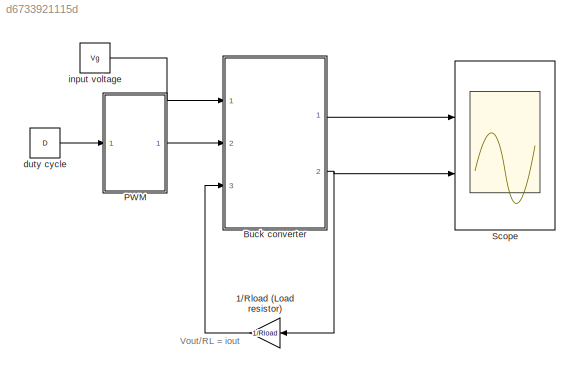
MODEL slx_d6733921115d
KIND model
CONFIG AbsTol = auto
CONFIG FixedStep = auto
CONFIG MaxStep = 0.1e-6
CONFIG MinStep = auto
CONFIG RelTol = 1e-3
CONFIG SampleTimeConstraint = Unconstrained
CONFIG Solver = ode45
CONFIG SolverMode = Auto
CONFIG SolverName = ode45
CONFIG StartTime = 0.0
CONFIG StopTime = 1e-3
BLOCK [Gain] 1//Rload (Load resistor)
  Gain = 1/Rload
  OutDataTypeStr = Inherit: Inherit via internal rule
  ParamDataTypeStr = Inherit: Inherit via internal rule
  SaturateOnIntegerOverflow = off
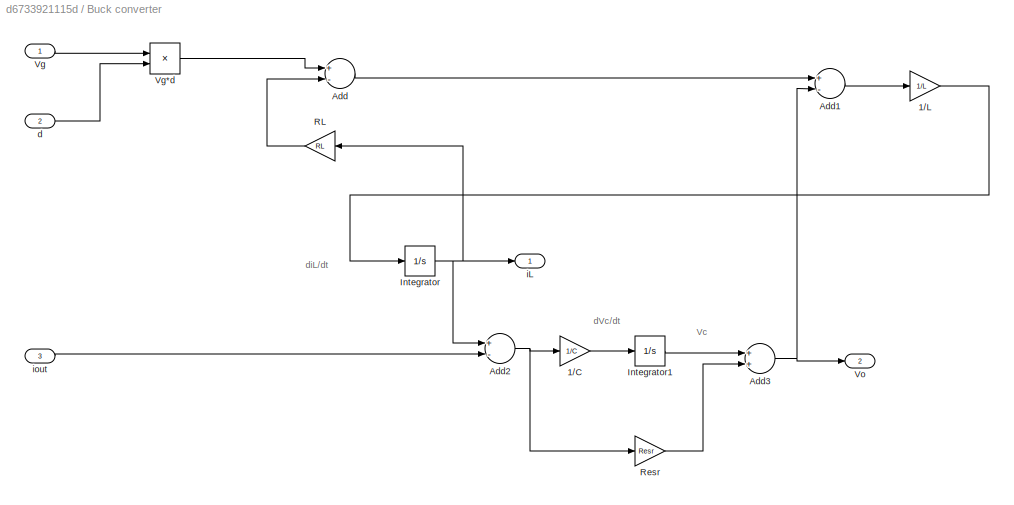
BLOCK [SubSystem] Buck converter
  Ports = [3, 2]
  RequestExecContextInheritance = off
  Variant = off
BLOCK [Gain] Buck converter/1//C
  Gain = 1/C
  OutDataTypeStr = Inherit: Inherit via internal rule
  ParamDataTypeStr = Inherit: Inherit via internal rule
  SaturateOnIntegerOverflow = off
BLOCK [Gain] Buck converter/1//L
  Gain = 1/L
  OutDataTypeStr = Inherit: Inherit via internal rule
  ParamDataTypeStr = Inherit: Inherit via internal rule
  SaturateOnIntegerOverflow = off
BLOCK [Sum] Buck converter/Add
  InputSameDT = off
  Inputs = +-
  OutDataTypeStr = Inherit: Inherit via internal rule
  Ports = [2, 1]
  SaturateOnIntegerOverflow = off
BLOCK [Sum] Buck converter/Add1
  InputSameDT = off
  Inputs = +-
  OutDataTypeStr = Inherit: Inherit via internal rule
  Ports = [2, 1]
  SaturateOnIntegerOverflow = off
BLOCK [Sum] Buck converter/Add2
  InputSameDT = off
  Inputs = +-
  OutDataTypeStr = Inherit: Inherit via internal rule
  Ports = [2, 1]
  SaturateOnIntegerOverflow = off
BLOCK [Sum] Buck converter/Add3
  InputSameDT = off
  OutDataTypeStr = Inherit: Inherit via internal rule
  Ports = [2, 1]
  SaturateOnIntegerOverflow = off
BLOCK [Integrator] Buck converter/Integrator
  Ports = [1, 1]
BLOCK [Integrator] Buck converter/Integrator1
  Ports = [1, 1]
BLOCK [Gain] Buck converter/RL
  Gain = RL
  OutDataTypeStr = Inherit: Inherit via internal rule
  ParamDataTypeStr = Inherit: Inherit via internal rule
  SaturateOnIntegerOverflow = off
BLOCK [Gain] Buck converter/Resr
  Gain = Resr
  OutDataTypeStr = Inherit: Inherit via internal rule
  ParamDataTypeStr = Inherit: Inherit via internal rule
  SaturateOnIntegerOverflow = off
BLOCK [Inport] Buck converter/Vg
  IconDisplay = Port number
BLOCK [Product] Buck converter/Vg*d
  InputSameDT = off
  OutDataTypeStr = Inherit: Inherit via internal rule
  Ports = [2, 1]
  RndMeth = Floor
  SaturateOnIntegerOverflow = off
BLOCK [Outport] Buck converter/Vo
  IconDisplay = Port number
  Port = 2
BLOCK [Inport] Buck converter/d
  IconDisplay = Port number
  Port = 2
BLOCK [Outport] Buck converter/iL
  IconDisplay = Port number
BLOCK [Inport] Buck converter/iout
  IconDisplay = Port number
  Port = 3
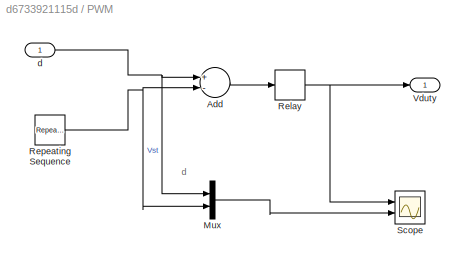
BLOCK [SubSystem] PWM
  Ports = [1, 1]
  RequestExecContextInheritance = off
  Variant = off
BLOCK [Sum] PWM/Add
  InputSameDT = off
  Inputs = +-
  OutDataTypeStr = Inherit: Inherit via internal rule
  Ports = [2, 1]
  SaturateOnIntegerOverflow = off
BLOCK [Mux] PWM/Mux
  DisplayOption = bar
  Inputs = 2
  Ports = [2, 1]
BLOCK [Relay] PWM/Relay
  InputProcessing = Elements as channels (sample based)
BLOCK [Reference] PWM/Repeating Sequence  REF=simulink/Sources/Repeating
Sequence
  Ports = [0, 1]
  SourceBlock = simulink/Sources/Repeating\nSequence
  SourceType = Repeating table
BLOCK [Scope] PWM/Scope
  NumInputPorts = 2
  Ports = [2]
  ScopeSpecificationString = Simulink.scopes.TimeScopeBlockCfg('CurrentConfiguration', extmgr.ConfigurationSet(extmgr.Configuration('Core','General UI',true),extmgr.Configuration('Core','Source UI',true),extmgr.Configuration('Sources','WiredSimulink',true),extmgr.Configuration('Visuals','Time Domain',true,'SerializedDisplays',{struct('MinYLimReal','-0.125','MaxYLimReal','1.125','YLabelReal','','MinYLimMag','0.00000','MaxYLimM...<+2025ch>
BLOCK [Outport] PWM/Vduty
  IconDisplay = Port number
BLOCK [Inport] PWM/d
  IconDisplay = Port number
BLOCK [Scope] Scope
  NumInputPorts = 2
  Ports = [2]
  ScopeSpecificationString = Simulink.scopes.TimeScopeBlockCfg('CurrentConfiguration', extmgr.ConfigurationSet(extmgr.Configuration('Core','General UI',true),extmgr.Configuration('Core','Source UI',true),extmgr.Configuration('Sources','WiredSimulink',true,'DataLoggingVariableName','ScopeData1'),extmgr.Configuration('Visuals','Time Domain',true,'SerializedDisplays',{struct('MinYLimReal','-10.00000','MaxYLimReal','10.00000','YL...<+2095ch>
BLOCK [Constant] duty cycle
  Value = D
BLOCK [Constant] input voltage
  Value = Vg
ANNOTATION (root): Vout/RL = iout
ANNOTATION Buck converter: Vc
ANNOTATION Buck converter: dVc/dt
ANNOTATION Buck converter: diL/dt
ANNOTATION PWM: d
LINE 1//Rload (Load resistor):1 -> Buck converter:3
LINE Buck converter/1//C:1 -> Buck converter/Integrator1:1
LINE Buck converter/1//L:1 -> Buck converter/Integrator:1
LINE Buck converter/Add1:1 -> Buck converter/1//L:1
NET Buck converter/Add2:1 -> Buck converter/1//C:1, Buck converter/Resr:1
NET Buck converter/Add3:1 -> Buck converter/Add1:2, Buck converter/Vo:1
LINE Buck converter/Add:1 -> Buck converter/Add1:1
LINE Buck converter/Integrator1:1 -> Buck converter/Add3:1
NET Buck converter/Integrator:1 -> Buck converter/Add2:1, Buck converter/RL:1, Buck converter/iL:1
LINE Buck converter/RL:1 -> Buck converter/Add:2
LINE Buck converter/Resr:1 -> Buck converter/Add3:2
LINE Buck converter/Vg*d:1 -> Buck converter/Add:1
LINE Buck converter/Vg:1 -> Buck converter/Vg*d:1
LINE Buck converter/d:1 -> Buck converter/Vg*d:2
LINE Buck converter/iout:1 -> Buck converter/Add2:2
LINE Buck converter:1 -> Scope:1
NET Buck converter:2 -> 1//Rload (Load resistor):1, Scope:2
LINE PWM/Add:1 -> PWM/Relay:1
LINE PWM/Mux:1 -> PWM/Scope:2
NET PWM/Relay:1 -> PWM/Scope:1, PWM/Vduty:1
NET PWM/Repeating Sequence:1 -> PWM/Add:2, PWM/Mux:2
NET PWM/d:1 -> PWM/Add:1, PWM/Mux:1
LINE PWM:1 -> Buck converter:2
LINE duty cycle:1 -> PWM:1
LINE input voltage:1 -> Buck converter:1
note: NET lines group one-source signal fan-out (src -> all destinations, sorted); 1:1 wires keep LINE
